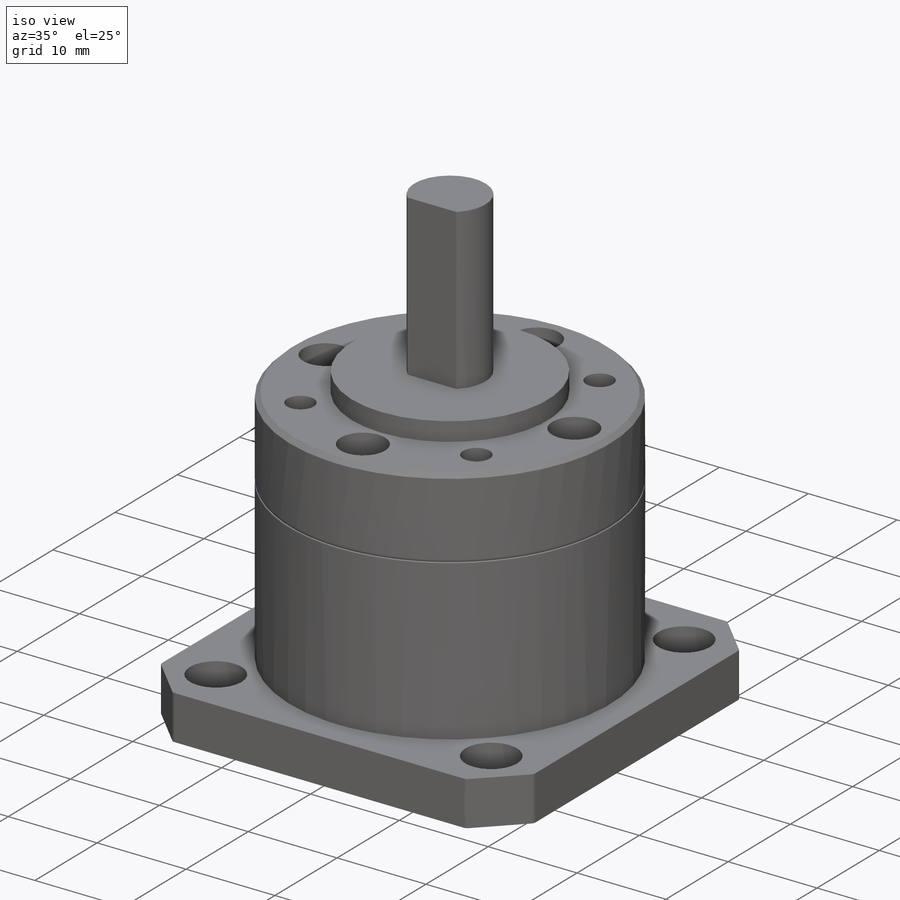
[diagram: iso view]
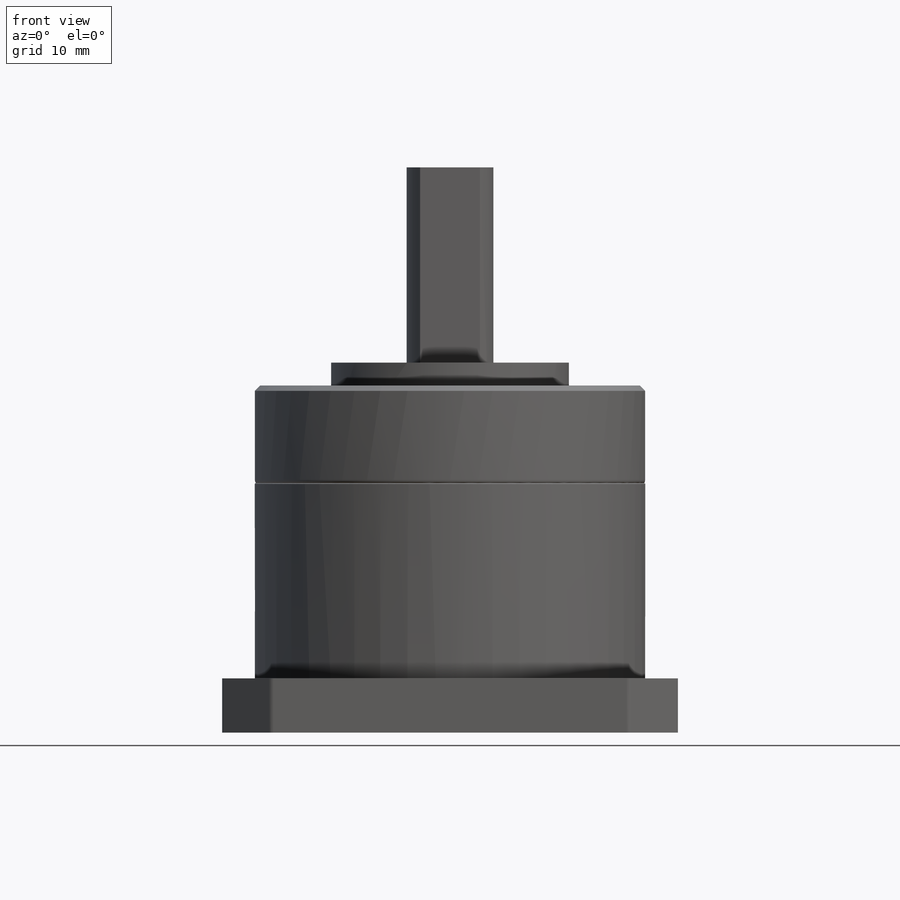
[diagram: front view]
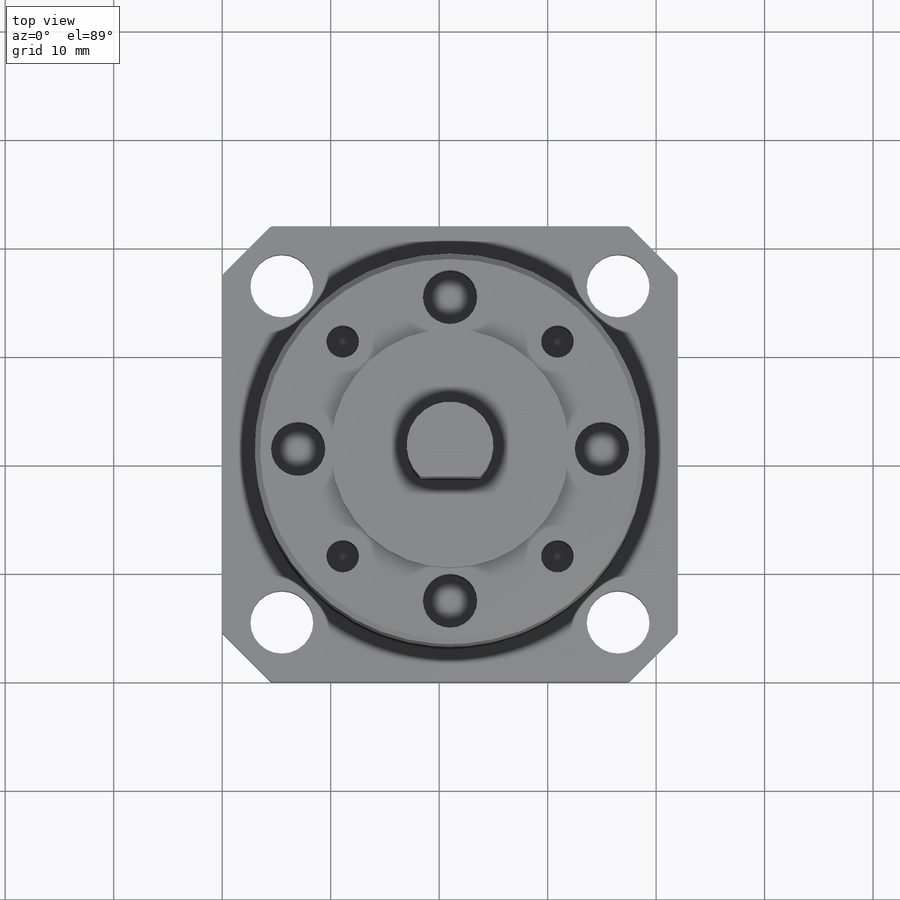
[diagram: top view]
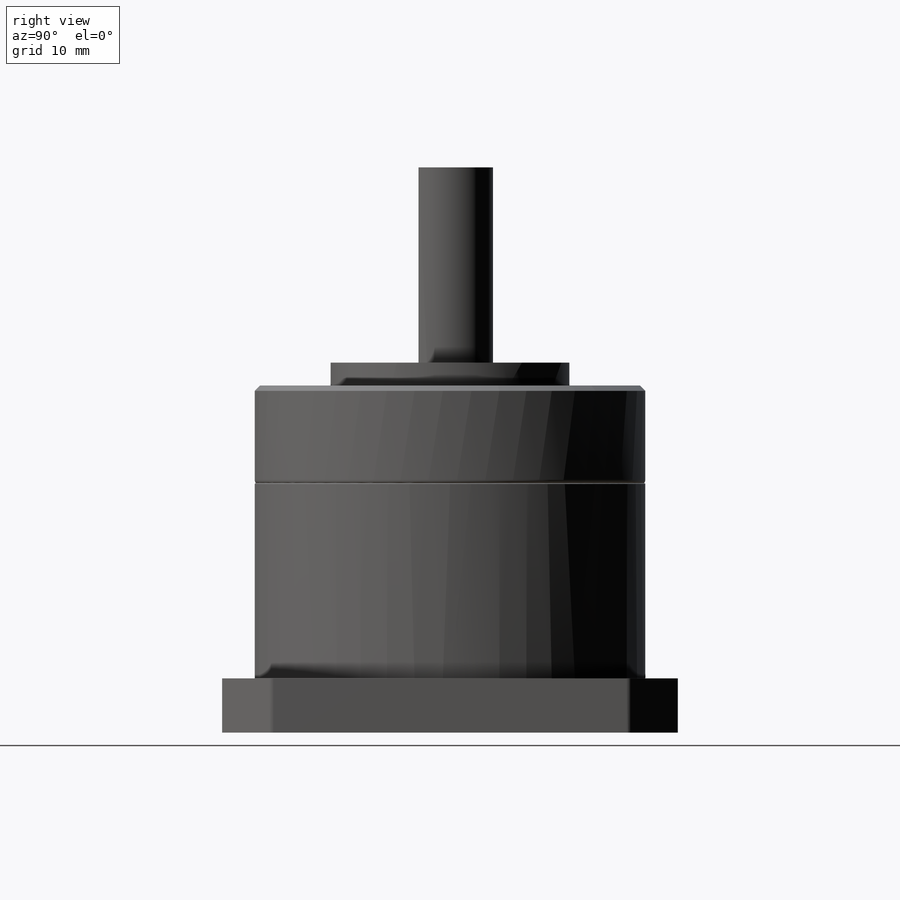
[diagram: right view]
SOLIDWORKS PART (.sldprt)
format: sldprt  version: not decoded by parser v0  size: 306,176 bytes
history: native  units: mm
features: sketch x6, extrude x5, fillet x3, material x1, chamfer x1, cut_extrude x1 (+13 scaffold rows collapsed)
feature tree (30):
  scaffold x13  (default folders/planes/origin — collapsed)
  material  "Plain Carbon Steel"
  sketch  "Sketch1"  dims[c1.D2=5.8mm c1.D3=5.8mm c1.D1=42.0mm c2.D3=31.0mm]
  extrude  "Boss-Extrude1"  Depth=5mm
  sketch  "Sketch2"  dims[D1=21.0mm]
  extrude  "Boss-Extrude2"  Depth=18mm
  fillet  "Fillet1"  Radius=0.1mm
  fillet  "Fillet2"  Radius=0.5mm
  sketch  "Sketch4"  dims[D1=36.0mm]
  extrude  "Boss-Extrude3"  Depth=9mm
  fillet  "Fillet3"  Radius=0.5mm
  chamfer  "Chamfer1"  Distance=0.5mm Angle=45deg
  sketch  "Sketch6"  dims[c1.D3=5.0mm c1.D4=3.0mm c1.D1=14.0mm c1.D2=~14.328358mm c2.D2=45.0deg]
  cut_extrude  "Cut-Extrude1"  Depth=9mm
  sketch  "Sketch7"  dims[D1=22.0mm]
  extrude  "Boss-Extrude4"  Depth=2.1mm
  sketch  "Sketch8"  dims[D1=8.0mm D2=2.9mm]
  extrude  "Boss-Extrude5"  Depth=18mm
decode coverage: 16 of 16 modeling features carry decoded parameters
note: ~ marks probable driven/reference dimensions
note: suppression state not decoded; provenance and decode notes live in map.json
